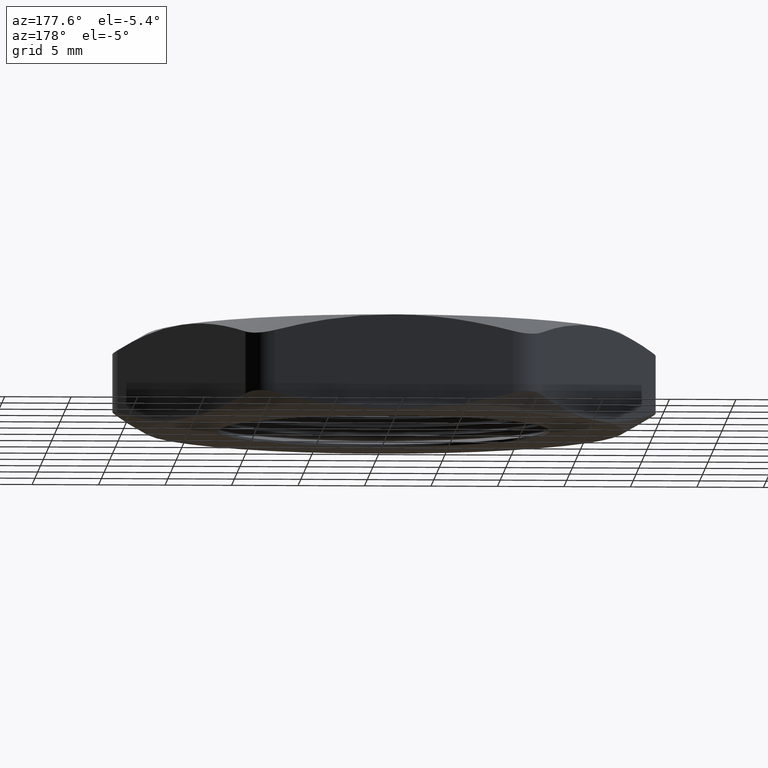
[diagram: clean part render]
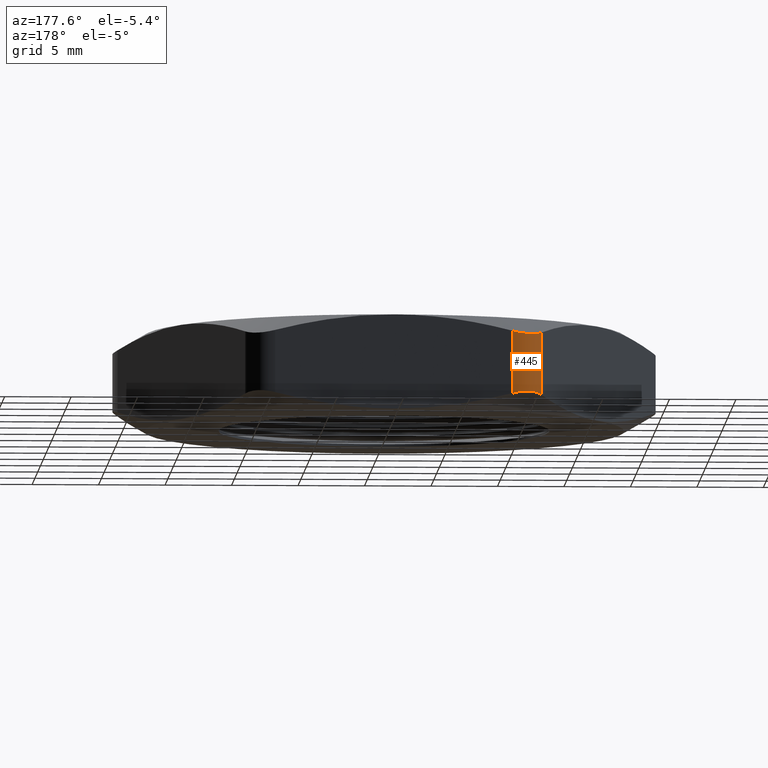
[diagram: same view with one face highlighted and labeled with its STEP entity id]
A machine part, auxiliary view. The second image highlights one B-rep face of the part: STEP entity #445.
In plain terms, the highlighted cylindrical surface (edge-blend (fillet) strip) has radius 2.54 mm, axis along (0, 0, -1).
Its self-contained STEP definition (entity closure, byte-faithful):
#410 = EDGE_CURVE ( 'NONE', #2480, #2512, #1310, .T. ) ;
#445 = ADVANCED_FACE ( 'NONE', ( #1369 ), #1368, .T. ) ;
#446 = EDGE_LOOP ( 'NONE', ( #447, #448, #449, #450 ) ) ;
#447 = ORIENTED_EDGE ( 'NONE', *, *, #531, .F. ) ;
#448 = ORIENTED_EDGE ( 'NONE', *, *, #2501, .F. ) ;
#449 = ORIENTED_EDGE ( 'NONE', *, *, #410, .F. ) ;
#450 = ORIENTED_EDGE ( 'NONE', *, *, #2490, .F. ) ;
#531 = EDGE_CURVE ( 'NONE', #2506, #2493, #1479, .T. ) ;
#1298 = CARTESIAN_POINT ( 'NONE',  ( -0.3521836642056738200, 0.7100000000000000800, 0.04765947463262520900 ) ) ;
#1299 = CARTESIAN_POINT ( 'NONE',  ( -0.3608018162002494800, 0.7100000000000003000, 0.04987051570004462400 ) ) ;
#1300 = CARTESIAN_POINT ( 'NONE',  ( -0.3695338035814510500, 0.7088673337131450300, 0.05159198415360008400 ) ) ;
#1301 = CARTESIAN_POINT ( 'NONE',  ( -0.3863561815961575900, 0.7043822868291624900, 0.05388934619562082300 ) ) ;
#1302 = CARTESIAN_POINT ( 'NONE',  ( -0.3946490545010735200, 0.7009611854526370800, 0.05448673991602386000 ) ) ;
#1303 = CARTESIAN_POINT ( 'NONE',  ( -0.4098646263144757900, 0.6921593162221580900, 0.05447922889204388800 ) ) ;
#1304 = CARTESIAN_POINT ( 'NONE',  ( -0.4169031141646683000, 0.6867340792261019700, 0.05388414981734768900 ) ) ;
#1305 = CARTESIAN_POINT ( 'NONE',  ( -0.4292579904062405700, 0.6743138737629843500, 0.05156043310660174400 ) ) ;
#1306 = CARTESIAN_POINT ( 'NONE',  ( -0.4344783866740130100, 0.6674613594900527000, 0.04986987015969265900 ) ) ;
#1307 = CARTESIAN_POINT ( 'NONE',  ( -0.4387862045841154900, 0.6600000000000002500, 0.04765947463262470300 ) ) ;
#1310 = B_SPLINE_CURVE_WITH_KNOTS ( 'NONE', 3,
 ( #1307, #1306, #1305, #1304, #1303, #1302, #1301, #1300, #1299, #1298 ),
 .UNSPECIFIED., .F., .F.,
 ( 4, 2, 2, 2, 4 ),
 ( 3.933129244866141200E-018, 0.0006687025668864014000, 0.001337405133772798900, 0.002006107700659196500, 0.002674810267545593900 ),
 .UNSPECIFIED. ) ;
#1364 = DIRECTION ( 'NONE',  ( -1.000000000000000000, 0.0000000000000000000, 0.0000000000000000000 ) ) ;
#1365 = DIRECTION ( 'NONE',  ( 0.0000000000000000000, 0.0000000000000000000, -1.000000000000000000 ) ) ;
#1366 = AXIS2_PLACEMENT_3D ( 'NONE', #1374, #1365, #1364 ) ;
#1368 = CYLINDRICAL_SURFACE ( 'NONE', #1366, 0.1000000000000000200 ) ;
#1369 = FACE_OUTER_BOUND ( 'NONE', #446, .T. ) ;
#1374 = CARTESIAN_POINT ( 'NONE',  ( -0.3521836642056717100, 0.6100000000000001000, 0.2800000000000000300 ) ) ;
#1475 = CARTESIAN_POINT ( 'NONE',  ( -0.3693439495999197900, 0.7089052613507529400, 0.2284395668933977800 ) ) ;
#1476 = CARTESIAN_POINT ( 'NONE',  ( -0.3607993000258769600, 0.7099999999999999600, 0.2301301298403008500 ) ) ;
#1477 = CARTESIAN_POINT ( 'NONE',  ( -0.3521836642056743200, 0.7100000000000000800, 0.2323405253673747100 ) ) ;
#1479 = B_SPLINE_CURVE_WITH_KNOTS ( 'NONE', 3,
 ( #1477, #1476, #1475, #1530, #1529, #1528, #1527, #1526, #1525, #1524 ),
 .UNSPECIFIED., .F., .F.,
 ( 4, 2, 2, 2, 4 ),
 ( 3.772774310137954300E-017, 0.0006687025668864410800, 0.001337405133772844400, 0.002006107700659247700, 0.002674810267545651100 ),
 .UNSPECIFIED. ) ;
#1524 = CARTESIAN_POINT ( 'NONE',  ( -0.4387862045841156000, 0.6599999999999999200, 0.2323405253673753200 ) ) ;
#1525 = CARTESIAN_POINT ( 'NONE',  ( -0.4344771285868276900, 0.6674635385609790600, 0.2301294842999556100 ) ) ;
#1526 = CARTESIAN_POINT ( 'NONE',  ( -0.4291302171178008100, 0.6744593283151961700, 0.2284080158464003300 ) ) ;
#1527 = CARTESIAN_POINT ( 'NONE',  ( -0.4168348635717548100, 0.6867854115860057000, 0.2261106538043793900 ) ) ;
#1528 = CARTESIAN_POINT ( 'NONE',  ( -0.4097256664183041000, 0.6922566995037561200, 0.2255132600839761800 ) ) ;
#1529 = CARTESIAN_POINT ( 'NONE',  ( -0.3944952381572198200, 0.7010328366120298600, 0.2255207711079560100 ) ) ;
#1530 = CARTESIAN_POINT ( 'NONE',  ( -0.3862776011719880600, 0.7044157273964966000, 0.2261158501826520400 ) ) ;
#1731 = CARTESIAN_POINT ( 'NONE',  ( -0.4387862045841154900, 0.6600000000000002500, 0.04765947463262470300 ) ) ;
#1747 = DIRECTION ( 'NONE',  ( 0.0000000000000000000, 0.0000000000000000000, 1.000000000000000000 ) ) ;
#1748 = VECTOR ( 'NONE', #1747, 39.37007874015748100 ) ;
#1755 = CARTESIAN_POINT ( 'NONE',  ( -0.3521836642056717100, 0.7100000000000000800, 0.2800000000000000300 ) ) ;
#1756 = LINE ( 'NONE', #1755, #1748 ) ;
#1758 = CARTESIAN_POINT ( 'NONE',  ( -0.4387862045841156000, 0.6599999999999999200, 0.2323405253673753200 ) ) ;
#1764 = DIRECTION ( 'NONE',  ( 0.0000000000000000000, 0.0000000000000000000, -1.000000000000000000 ) ) ;
#1765 = VECTOR ( 'NONE', #1764, 39.37007874015748100 ) ;
#1766 = CARTESIAN_POINT ( 'NONE',  ( -0.4387862045841156000, 0.6600000000000000300, 0.2800000000000000300 ) ) ;
#1767 = LINE ( 'NONE', #1766, #1765 ) ;
#1783 = CARTESIAN_POINT ( 'NONE',  ( -0.3521836642056738200, 0.7100000000000000800, 0.04765947463262520900 ) ) ;
#1804 = CARTESIAN_POINT ( 'NONE',  ( -0.3521836642056743200, 0.7100000000000000800, 0.2323405253673747100 ) ) ;
#2480 = VERTEX_POINT ( 'NONE', #1731 ) ;
#2490 = EDGE_CURVE ( 'NONE', #2493, #2480, #1767, .T. ) ;
#2493 = VERTEX_POINT ( 'NONE', #1758 ) ;
#2501 = EDGE_CURVE ( 'NONE', #2512, #2506, #1756, .T. ) ;
#2506 = VERTEX_POINT ( 'NONE', #1804 ) ;
#2512 = VERTEX_POINT ( 'NONE', #1783 ) ;